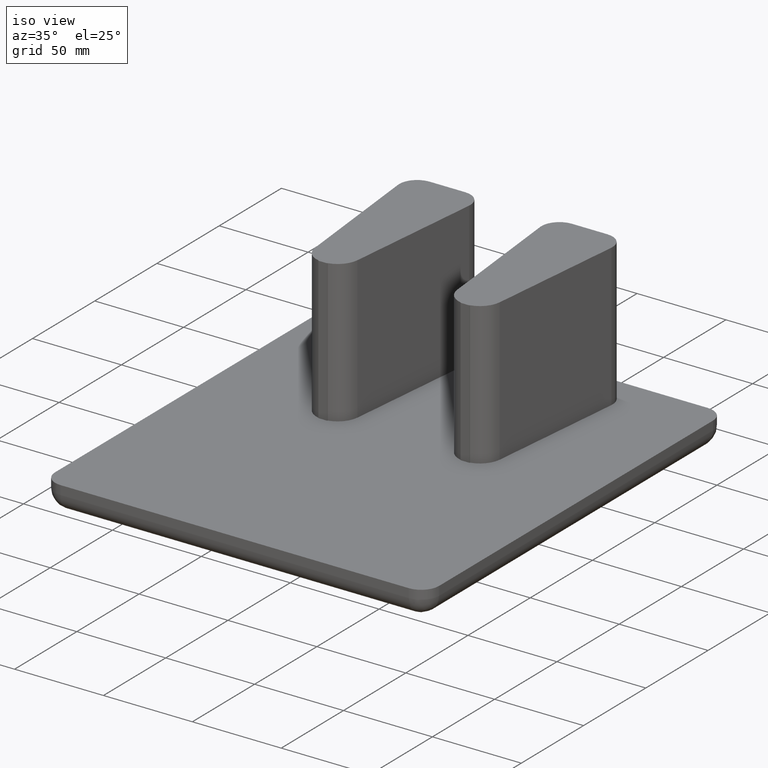
[diagram: clean part render]
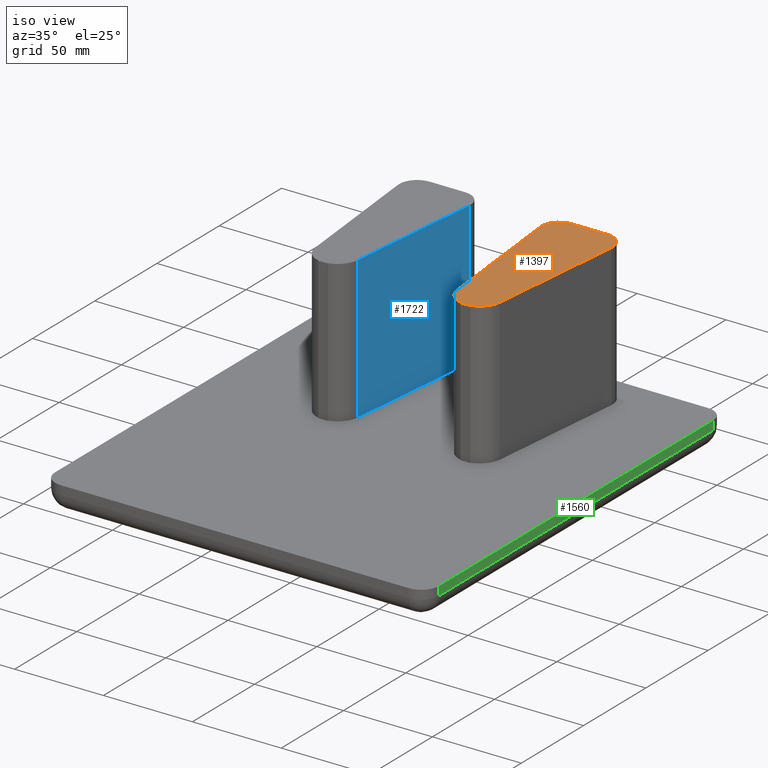
[diagram: same view with three faces highlighted in distinct colors, each labeled with its STEP entity id]
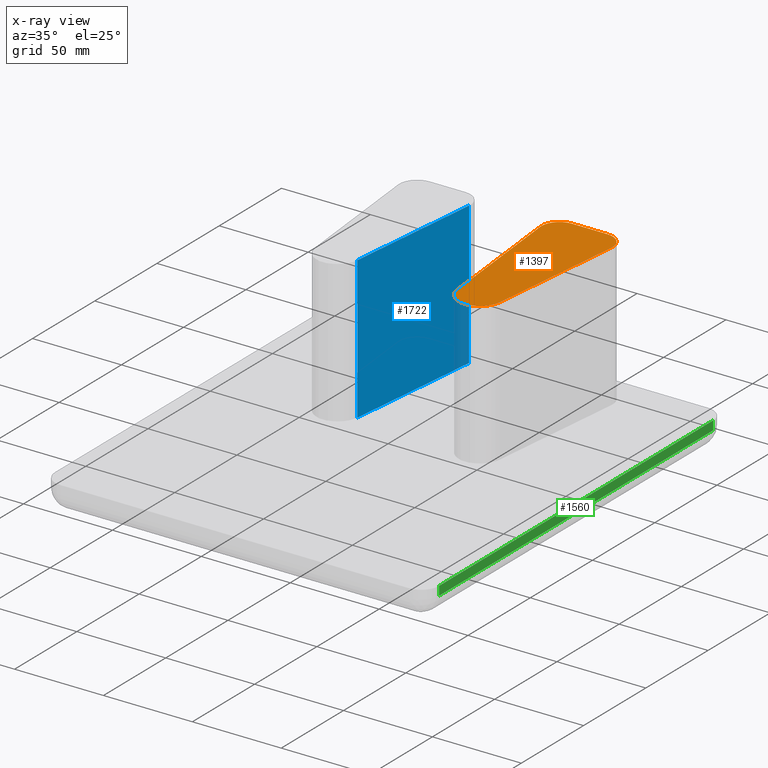
[diagram: x-ray of the same camera — body ghosted, the three highlighted faces saturated]
A machine part, iso view with three faces highlighted in distinct colors.
The next image is the same camera in x-ray (body ghosted, the three faces saturated) — at least one of them is partly hidden behind the body in this view.
Their STEP definitions:

[orange] entity #1397 — the highlighted planar face has unit normal (0, 0, -1).
#196=CARTESIAN_POINT('',(-80.800967546342662,116.90407944196109,95.000000000000028));
#197=VERTEX_POINT('',#196);
#215=CARTESIAN_POINT('',(-71.363427837039026,127.41801253507381,95.000000000000028));
#216=VERTEX_POINT('',#215);
#223=CARTESIAN_POINT('',(-83.300967546342633,128.64077403626658,95.000000000000028));
#224=DIRECTION('',(0.0,0.0,-1.0));
#225=DIRECTION('',(-0.208333333333333,0.978057882858792,0.0));
#226=AXIS2_PLACEMENT_3D('',#223,#224,#225);
#227=CIRCLE('',#226,12.0);
#228=EDGE_CURVE('',#216,#197,#227,.T.);
#278=CARTESIAN_POINT('',(-80.800967546342662,116.64077403626656,95.000000000000028));
#279=VERTEX_POINT('',#278);
#288=CARTESIAN_POINT('',(-85.800967546342633,116.64077403626656,95.000000000000028));
#289=VERTEX_POINT('',#288);
#290=CARTESIAN_POINT('',(-80.800967546342662,116.64077403626656,95.000000000000028));
#291=DIRECTION('',(-1.0,0.0,0.0));
#292=VECTOR('',#291,4.999999999999986);
#293=LINE('',#290,#292);
#294=EDGE_CURVE('',#279,#289,#293,.T.);
#320=CARTESIAN_POINT('',(-85.800967546342662,116.90407944196109,95.000000000000028));
#321=VERTEX_POINT('',#320);
#328=CARTESIAN_POINT('',(-95.238507255646283,127.41801253507381,95.000000000000028));
#329=VERTEX_POINT('',#328);
#330=CARTESIAN_POINT('',(-83.300967546342633,128.64077403626658,95.000000000000028));
#331=DIRECTION('',(0.0,0.0,-1.0));
#332=DIRECTION('',(0.994794975775302,0.101896791766063,0.0));
#333=AXIS2_PLACEMENT_3D('',#330,#331,#332);
#334=CIRCLE('',#333,12.000000000000002);
#335=EDGE_CURVE('',#321,#329,#334,.T.);
#1317=CARTESIAN_POINT('',(-85.800967546342662,116.64077403626656,95.000000000000028));
#1318=DIRECTION('',(0.0,1.0,0.0));
#1319=VECTOR('',#1318,0.263305405694524);
#1320=LINE('',#1317,#1319);
#1321=EDGE_CURVE('',#289,#321,#1320,.T.);
#1336=CARTESIAN_POINT('',(-80.800967546342633,116.90407944196109,95.000000000000028));
#1337=DIRECTION('',(0.0,-1.0,0.0));
#1338=VECTOR('',#1337,0.263305405694524);
#1339=LINE('',#1336,#1338);
#1340=EDGE_CURVE('',#197,#279,#1339,.T.);
#1345=CARTESIAN_POINT('',(-83.300967546342662,170.34678067602471,95.000000000000028));
#1346=DIRECTION('',(0.0,0.0,-1.0));
#1347=DIRECTION('',(-1.0,0.0,0.0));
#1348=AXIS2_PLACEMENT_3D('',#1345,#1346,#1347);
#1349=PLANE('',#1348);
#1350=CARTESIAN_POINT('',(-93.30096754634269,216.64077403626658,95.000000000000028));
#1351=VERTEX_POINT('',#1350);
#1352=CARTESIAN_POINT('',(-73.300967546342704,216.64077403626658,95.000000000000028));
#1353=VERTEX_POINT('',#1352);
#1354=CARTESIAN_POINT('',(-93.30096754634269,216.64077403626658,95.000000000000028));
#1355=DIRECTION('',(1.0,0.0,0.0));
#1356=VECTOR('',#1355,19.999999999999986);
#1357=LINE('',#1354,#1356);
#1358=EDGE_CURVE('',#1351,#1353,#1357,.T.);
#1359=ORIENTED_EDGE('',*,*,#1358,.F.);
#1360=CARTESIAN_POINT('',(-103.24891730409567,205.621806118606,95.000000000000028));
#1361=VERTEX_POINT('',#1360);
#1362=CARTESIAN_POINT('',(-93.30096754634269,206.64077403626658,95.000000000000028));
#1363=DIRECTION('',(0.0,0.0,-1.0));
#1364=DIRECTION('',(0.0,-1.0,0.0));
#1365=AXIS2_PLACEMENT_3D('',#1362,#1363,#1364);
#1366=CIRCLE('',#1365,10.0);
#1367=EDGE_CURVE('',#1361,#1351,#1366,.T.);
#1368=ORIENTED_EDGE('',*,*,#1367,.F.);
#1369=CARTESIAN_POINT('',(-95.238507255646283,127.41801253507381,95.000000000000028));
#1370=DIRECTION('',(-0.101896791766064,0.994794975775302,0.0));
#1371=VECTOR('',#1370,78.612976028134241);
#1372=LINE('',#1369,#1371);
#1373=EDGE_CURVE('',#329,#1361,#1372,.T.);
#1374=ORIENTED_EDGE('',*,*,#1373,.F.);
#1375=ORIENTED_EDGE('',*,*,#335,.F.);
#1376=ORIENTED_EDGE('',*,*,#1321,.F.);
#1377=ORIENTED_EDGE('',*,*,#294,.F.);
#1378=ORIENTED_EDGE('',*,*,#1340,.F.);
#1379=ORIENTED_EDGE('',*,*,#228,.F.);
#1380=CARTESIAN_POINT('',(-63.353017788589661,205.621806118606,95.000000000000028));
#1381=VERTEX_POINT('',#1380);
#1382=CARTESIAN_POINT('',(-63.353017788589661,205.621806118606,95.000000000000028));
#1383=DIRECTION('',(-0.101896791766064,-0.994794975775302,0.0));
#1384=VECTOR('',#1383,78.612976028134256);
#1385=LINE('',#1382,#1384);
#1386=EDGE_CURVE('',#1381,#216,#1385,.T.);
#1387=ORIENTED_EDGE('',*,*,#1386,.F.);
#1388=CARTESIAN_POINT('',(-73.300967546342662,206.64077403626663,95.000000000000028));
#1389=DIRECTION('',(0.0,0.0,-1.0));
#1390=DIRECTION('',(-0.994794975775302,0.101896791766061,0.0));
#1391=AXIS2_PLACEMENT_3D('',#1388,#1389,#1390);
#1392=CIRCLE('',#1391,10.0);
#1393=EDGE_CURVE('',#1353,#1381,#1392,.T.);
#1394=ORIENTED_EDGE('',*,*,#1393,.F.);
#1395=EDGE_LOOP('',(#1359,#1368,#1374,#1375,#1376,#1377,#1378,#1379,#1387,#1394));
#1396=FACE_OUTER_BOUND('',#1395,.T.);
#1397=ADVANCED_FACE('',(#1396),#1349,.F.);

[blue] entity #1722 — the highlighted planar face has unit normal (0.9948, -0.1019, 0).
#164=CARTESIAN_POINT('',(-151.36342783703913,127.41801253507381,15.000000000000002));
#165=VERTEX_POINT('',#164);
#173=CARTESIAN_POINT('',(-151.36342783703913,127.41801253507381,95.000000000000028));
#174=VERTEX_POINT('',#173);
#175=CARTESIAN_POINT('',(-151.36342783703913,127.41801253507381,15.000000000000002));
#176=DIRECTION('',(0.0,0.0,1.0));
#177=VECTOR('',#176,80.000000000000028);
#178=LINE('',#175,#177);
#179=EDGE_CURVE('',#165,#174,#178,.T.);
#872=CARTESIAN_POINT('',(-143.35301778858974,205.621806118606,15.000000000000002));
#873=VERTEX_POINT('',#872);
#881=CARTESIAN_POINT('',(-143.35301778858974,205.621806118606,15.000000000000002));
#882=DIRECTION('',(-0.101896791766064,-0.994794975775302,0.0));
#883=VECTOR('',#882,78.612976028134256);
#884=LINE('',#881,#883);
#885=EDGE_CURVE('',#873,#165,#884,.T.);
#1625=CARTESIAN_POINT('',(-143.35301778858974,205.621806118606,95.000000000000028));
#1626=VERTEX_POINT('',#1625);
#1627=CARTESIAN_POINT('',(-143.35301778858974,205.621806118606,95.000000000000028));
#1628=DIRECTION('',(-0.101896791766064,-0.994794975775302,0.0));
#1629=VECTOR('',#1628,78.612976028134256);
#1630=LINE('',#1627,#1629);
#1631=EDGE_CURVE('',#1626,#174,#1630,.T.);
#1699=CARTESIAN_POINT('',(-143.35301778858974,205.621806118606,15.000000000000002));
#1700=DIRECTION('',(0.0,0.0,1.0));
#1701=VECTOR('',#1700,80.000000000000028);
#1702=LINE('',#1699,#1701);
#1703=EDGE_CURVE('',#873,#1626,#1702,.T.);
#1711=CARTESIAN_POINT('',(-143.35301778858974,205.621806118606,15.000000000000002));
#1712=DIRECTION('',(0.994794975775302,-0.101896791766064,0.0));
#1713=DIRECTION('',(0.0,0.0,-1.0));
#1714=AXIS2_PLACEMENT_3D('',#1711,#1712,#1713);
#1715=PLANE('',#1714);
#1716=ORIENTED_EDGE('',*,*,#179,.F.);
#1717=ORIENTED_EDGE('',*,*,#885,.F.);
#1718=ORIENTED_EDGE('',*,*,#1703,.T.);
#1719=ORIENTED_EDGE('',*,*,#1631,.T.);
#1720=EDGE_LOOP('',(#1716,#1717,#1718,#1719));
#1721=FACE_OUTER_BOUND('',#1720,.T.);
#1722=ADVANCED_FACE('',(#1721),#1715,.T.);

[green] entity #1560 — the highlighted planar face has unit normal (1, 0, 0).
#792=CARTESIAN_POINT('',(-15.30096754634269,218.64077403626646,15.000000000000002));
#793=VERTEX_POINT('',#792);
#794=CARTESIAN_POINT('',(-15.300967546342672,-1.35922596373348,15.000000000000002));
#795=VERTEX_POINT('',#794);
#796=CARTESIAN_POINT('',(-15.30096754634269,218.64077403626646,15.000000000000002));
#797=DIRECTION('',(0.0,-1.0,0.0));
#798=VECTOR('',#797,219.99999999999994);
#799=LINE('',#796,#798);
#800=EDGE_CURVE('',#793,#795,#799,.T.);
#989=CARTESIAN_POINT('',(-15.30096754634269,218.64077403626646,10.0));
#990=VERTEX_POINT('',#989);
#998=CARTESIAN_POINT('',(-15.300967546342672,-1.35922596373348,10.0));
#999=VERTEX_POINT('',#998);
#1000=CARTESIAN_POINT('',(-15.30096754634269,218.64077403626646,10.0));
#1001=DIRECTION('',(0.0,-1.0,0.0));
#1002=VECTOR('',#1001,219.99999999999994);
#1003=LINE('',#1000,#1002);
#1004=EDGE_CURVE('',#990,#999,#1003,.T.);
#1533=CARTESIAN_POINT('',(-15.300967546342672,-1.35922596373348,10.0));
#1534=DIRECTION('',(0.0,0.0,1.0));
#1535=VECTOR('',#1534,5.000000000000002);
#1536=LINE('',#1533,#1535);
#1537=EDGE_CURVE('',#999,#795,#1536,.T.);
#1544=CARTESIAN_POINT('',(-15.30096754634269,228.64077403626658,0.0));
#1545=DIRECTION('',(1.0,0.0,0.0));
#1546=DIRECTION('',(0.0,0.0,-1.0));
#1547=AXIS2_PLACEMENT_3D('',#1544,#1545,#1546);
#1548=PLANE('',#1547);
#1549=ORIENTED_EDGE('',*,*,#1004,.F.);
#1550=CARTESIAN_POINT('',(-15.30096754634269,218.64077403626646,15.000000000000002));
#1551=DIRECTION('',(0.0,0.0,-1.0));
#1552=VECTOR('',#1551,5.000000000000002);
#1553=LINE('',#1550,#1552);
#1554=EDGE_CURVE('',#793,#990,#1553,.T.);
#1555=ORIENTED_EDGE('',*,*,#1554,.F.);
#1556=ORIENTED_EDGE('',*,*,#800,.T.);
#1557=ORIENTED_EDGE('',*,*,#1537,.F.);
#1558=EDGE_LOOP('',(#1549,#1555,#1556,#1557));
#1559=FACE_OUTER_BOUND('',#1558,.T.);
#1560=ADVANCED_FACE('',(#1559),#1548,.T.);